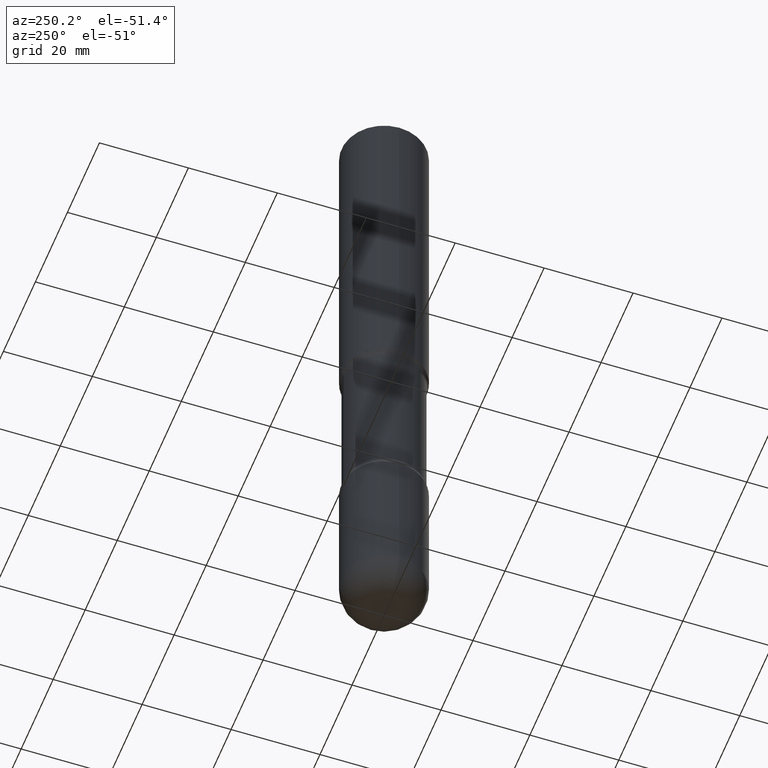
[diagram: clean part render]
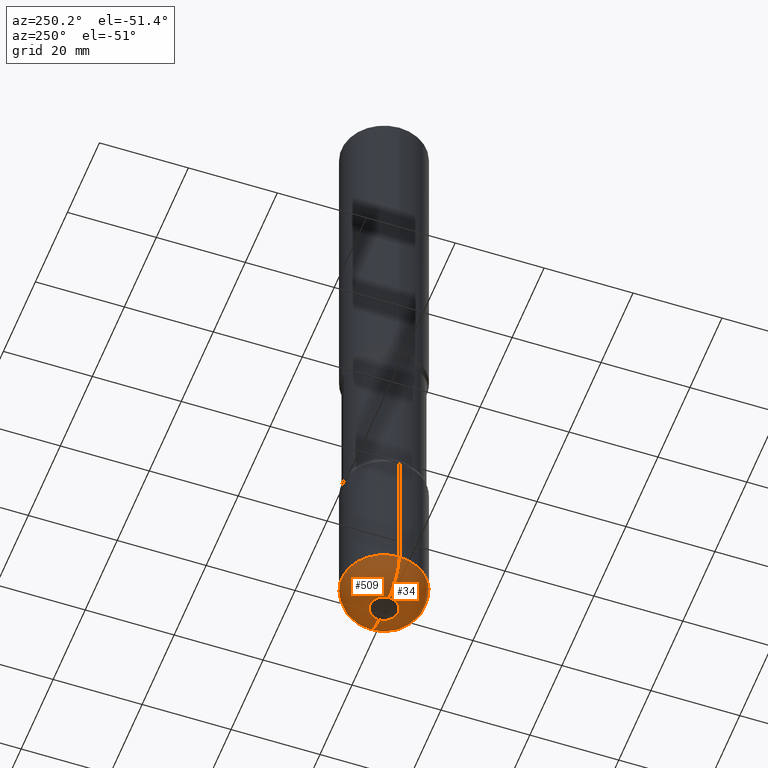
[diagram: same view with one multi-face feature highlighted, each face labeled with its STEP entity id]
A machine part, auxiliary view. The highlighted faces form ONE feature: a constant-radius fillet chain: 2 tangent blend faces with common blend radius 6.35 mm. The faces share edges in the B-rep.
Their STEP definitions:
[1] entity #34 (Torus):
#2 = VERTEX_POINT ( 'NONE', #532 ) ;
#17 = CARTESIAN_POINT ( 'NONE',  ( 0.1250000000000005551, -2.182175836776964973E-14, -5.999999999999997335 ) ) ;
#27 = VERTEX_POINT ( 'NONE', #113 ) ;
#29 = CARTESIAN_POINT ( 'NONE',  ( 1.406144563556453319E-28, -2.007601769834808306E-14, -5.749999999999998224 ) ) ;
#30 = CIRCLE ( 'NONE', #234, 0.2499999999999993061 ) ;
#34 = ADVANCED_FACE ( 'NONE', ( #412 ), #47, .T. ) ;
#42 = ORIENTED_EDGE ( 'NONE', *, *, #98, .F. ) ;
#47 = TOROIDAL_SURFACE ( 'NONE', #137, 0.1250000000000005274, 0.2499999999999993061 ) ;
#52 = DIRECTION ( 'NONE',  ( -6.982962677686266711E-15, -1.000000000000000000, 3.491481338843145583E-15 ) ) ;
#68 = AXIS2_PLACEMENT_3D ( 'NONE', #29, #153, #411 ) ;
#71 = CARTESIAN_POINT ( 'NONE',  ( -0.1250000000000005274, -1.918783927864795467E-14, -5.749999999999998224 ) ) ;
#74 = DIRECTION ( 'NONE',  ( 1.000000000000000000, -6.982962677686265922E-15, 4.883557194083112901E-29 ) ) ;
#75 = EDGE_CURVE ( 'NONE', #241, #2, #30, .T. ) ;
#98 = EDGE_CURVE ( 'NONE', #2, #27, #206, .T. ) ;
#111 = CARTESIAN_POINT ( 'NONE',  ( 1.467281283711081285E-28, -2.094888803305886324E-14, -5.999999999999997335 ) ) ;
#113 = CARTESIAN_POINT ( 'NONE',  ( 0.3750000000000001110, -2.269462870248043307E-14, -5.749999999999998224 ) ) ;
#128 = ORIENTED_EDGE ( 'NONE', *, *, #405, .T. ) ;
#137 = AXIS2_PLACEMENT_3D ( 'NONE', #546, #462, #74 ) ;
#143 = EDGE_LOOP ( 'NONE', ( #219, #215, #128, #42 ) ) ;
#151 = DIRECTION ( 'NONE',  ( 7.105427357601001859E-15, 1.000000000000000000, -3.491481338843145583E-15 ) ) ;
#153 = DIRECTION ( 'NONE',  ( -2.445468806185136597E-29, 3.491481338843145583E-15, 1.000000000000000000 ) ) ;
#206 = CIRCLE ( 'NONE', #68, 0.3750000000000004441 ) ;
#215 = ORIENTED_EDGE ( 'NONE', *, *, #545, .T. ) ;
#219 = ORIENTED_EDGE ( 'NONE', *, *, #75, .F. ) ;
#221 = CARTESIAN_POINT ( 'NONE',  ( -0.1250000000000005551, -1.873609602630322584E-14, -5.999999999999997335 ) ) ;
#226 = CIRCLE ( 'NONE', #435, 0.1250000000000005551 ) ;
#233 = CARTESIAN_POINT ( 'NONE',  ( 0.1250000000000005274, -2.094888803305886955E-14, -5.749999999999998224 ) ) ;
#234 = AXIS2_PLACEMENT_3D ( 'NONE', #71, #151, #548 ) ;
#241 = VERTEX_POINT ( 'NONE', #221 ) ;
#284 = DIRECTION ( 'NONE',  ( 1.000000000000000000, -6.982962677686267499E-15, 0.000000000000000000 ) ) ;
#289 = CIRCLE ( 'NONE', #373, 0.2499999999999993061 ) ;
#373 = AXIS2_PLACEMENT_3D ( 'NONE', #233, #52, #284 ) ;
#405 = EDGE_CURVE ( 'NONE', #422, #27, #289, .T. ) ;
#411 = DIRECTION ( 'NONE',  ( 1.000000000000000000, -6.982962677686265133E-15, 0.000000000000000000 ) ) ;
#412 = FACE_OUTER_BOUND ( 'NONE', #143, .T. ) ;
#414 = DIRECTION ( 'NONE',  ( 1.000000000000000000, -6.982962677686263555E-15, 0.000000000000000000 ) ) ;
#422 = VERTEX_POINT ( 'NONE', #17 ) ;
#435 = AXIS2_PLACEMENT_3D ( 'NONE', #111, #460, #414 ) ;
#460 = DIRECTION ( 'NONE',  ( -2.445468806185136597E-29, 3.491481338843145583E-15, 1.000000000000000000 ) ) ;
#462 = DIRECTION ( 'NONE',  ( -2.445468806185136597E-29, 3.491481338843145583E-15, 1.000000000000000000 ) ) ;
#532 = CARTESIAN_POINT ( 'NONE',  ( -0.3750000000000001110, -1.741148243924770736E-14, -5.749999999999998224 ) ) ;
#545 = EDGE_CURVE ( 'NONE', #241, #422, #226, .T. ) ;
#546 = CARTESIAN_POINT ( 'NONE',  ( 1.406144563556453319E-28, -2.007601769834808306E-14, -5.749999999999998224 ) ) ;
#548 = DIRECTION ( 'NONE',  ( -1.000000000000000000, 7.105427357601000281E-15, 0.000000000000000000 ) ) ;
[2] entity #509 (Torus):
#2 = VERTEX_POINT ( 'NONE', #532 ) ;
#17 = CARTESIAN_POINT ( 'NONE',  ( 0.1250000000000005551, -2.182175836776964973E-14, -5.999999999999997335 ) ) ;
#27 = VERTEX_POINT ( 'NONE', #113 ) ;
#30 = CIRCLE ( 'NONE', #234, 0.2499999999999993061 ) ;
#52 = DIRECTION ( 'NONE',  ( -6.982962677686266711E-15, -1.000000000000000000, 3.491481338843145583E-15 ) ) ;
#53 = ORIENTED_EDGE ( 'NONE', *, *, #374, .F. ) ;
#64 = ORIENTED_EDGE ( 'NONE', *, *, #75, .T. ) ;
#69 = AXIS2_PLACEMENT_3D ( 'NONE', #184, #188, #488 ) ;
#71 = CARTESIAN_POINT ( 'NONE',  ( -0.1250000000000005274, -1.918783927864795467E-14, -5.749999999999998224 ) ) ;
#75 = EDGE_CURVE ( 'NONE', #241, #2, #30, .T. ) ;
#100 = DIRECTION ( 'NONE',  ( -2.445468806185136597E-29, 3.491481338843145583E-15, 1.000000000000000000 ) ) ;
#102 = ORIENTED_EDGE ( 'NONE', *, *, #560, .T. ) ;
#103 = AXIS2_PLACEMENT_3D ( 'NONE', #201, #330, #204 ) ;
#113 = CARTESIAN_POINT ( 'NONE',  ( 0.3750000000000001110, -2.269462870248043307E-14, -5.749999999999998224 ) ) ;
#151 = DIRECTION ( 'NONE',  ( 7.105427357601001859E-15, 1.000000000000000000, -3.491481338843145583E-15 ) ) ;
#156 = CIRCLE ( 'NONE', #69, 0.3750000000000004441 ) ;
#184 = CARTESIAN_POINT ( 'NONE',  ( 1.406144563556453319E-28, -2.007601769834808306E-14, -5.749999999999998224 ) ) ;
#188 = DIRECTION ( 'NONE',  ( -2.445468806185136597E-29, 3.491481338843145583E-15, 1.000000000000000000 ) ) ;
#199 = FACE_OUTER_BOUND ( 'NONE', #223, .T. ) ;
#201 = CARTESIAN_POINT ( 'NONE',  ( 1.406144563556453319E-28, -2.007601769834808306E-14, -5.749999999999998224 ) ) ;
#204 = DIRECTION ( 'NONE',  ( 1.000000000000000000, -6.982962677686265922E-15, 4.883557194083112901E-29 ) ) ;
#221 = CARTESIAN_POINT ( 'NONE',  ( -0.1250000000000005551, -1.873609602630322584E-14, -5.999999999999997335 ) ) ;
#223 = EDGE_LOOP ( 'NONE', ( #102, #64, #53, #427 ) ) ;
#233 = CARTESIAN_POINT ( 'NONE',  ( 0.1250000000000005274, -2.094888803305886955E-14, -5.749999999999998224 ) ) ;
#234 = AXIS2_PLACEMENT_3D ( 'NONE', #71, #151, #548 ) ;
#241 = VERTEX_POINT ( 'NONE', #221 ) ;
#244 = AXIS2_PLACEMENT_3D ( 'NONE', #463, #100, #554 ) ;
#284 = DIRECTION ( 'NONE',  ( 1.000000000000000000, -6.982962677686267499E-15, 0.000000000000000000 ) ) ;
#289 = CIRCLE ( 'NONE', #373, 0.2499999999999993061 ) ;
#330 = DIRECTION ( 'NONE',  ( -2.445468806185136597E-29, 3.491481338843145583E-15, 1.000000000000000000 ) ) ;
#373 = AXIS2_PLACEMENT_3D ( 'NONE', #233, #52, #284 ) ;
#374 = EDGE_CURVE ( 'NONE', #27, #2, #156, .T. ) ;
#399 = CIRCLE ( 'NONE', #244, 0.1250000000000005551 ) ;
#405 = EDGE_CURVE ( 'NONE', #422, #27, #289, .T. ) ;
#409 = TOROIDAL_SURFACE ( 'NONE', #103, 0.1250000000000005274, 0.2499999999999993061 ) ;
#422 = VERTEX_POINT ( 'NONE', #17 ) ;
#427 = ORIENTED_EDGE ( 'NONE', *, *, #405, .F. ) ;
#463 = CARTESIAN_POINT ( 'NONE',  ( 1.467281283711081285E-28, -2.094888803305886324E-14, -5.999999999999997335 ) ) ;
#488 = DIRECTION ( 'NONE',  ( 1.000000000000000000, -6.982962677686265133E-15, 0.000000000000000000 ) ) ;
#509 = ADVANCED_FACE ( 'NONE', ( #199 ), #409, .T. ) ;
#532 = CARTESIAN_POINT ( 'NONE',  ( -0.3750000000000001110, -1.741148243924770736E-14, -5.749999999999998224 ) ) ;
#548 = DIRECTION ( 'NONE',  ( -1.000000000000000000, 7.105427357601000281E-15, 0.000000000000000000 ) ) ;
#554 = DIRECTION ( 'NONE',  ( 1.000000000000000000, -6.982962677686263555E-15, 0.000000000000000000 ) ) ;
#560 = EDGE_CURVE ( 'NONE', #422, #241, #399, .T. ) ;